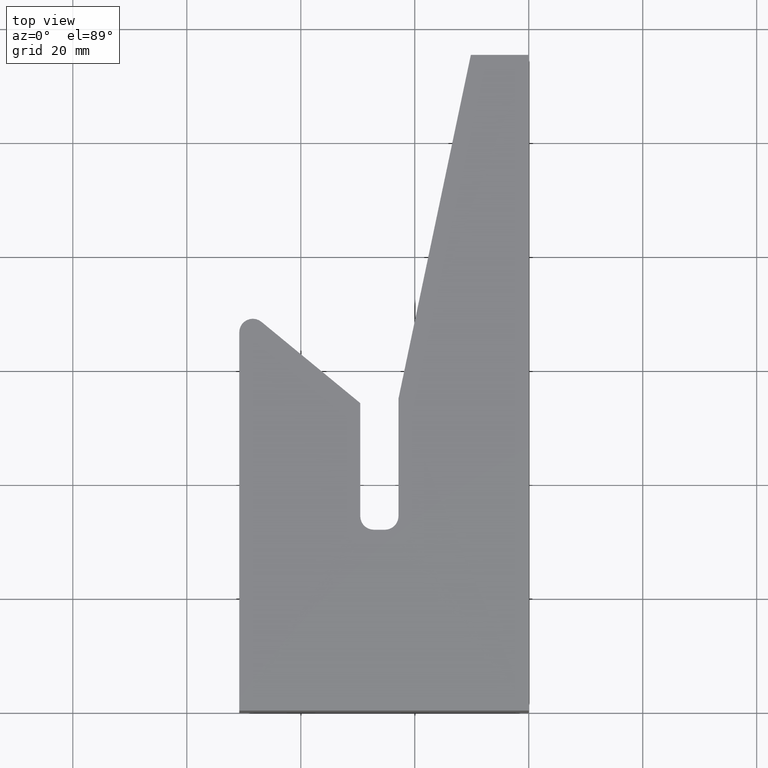
[diagram: clean part render]
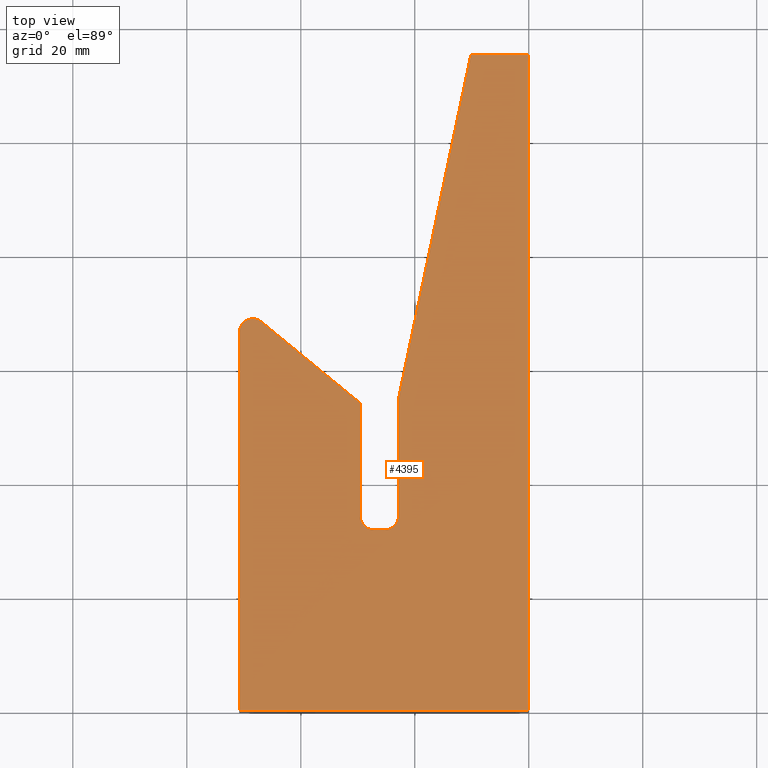
[diagram: same view with one face highlighted and labeled with its STEP entity id]
A machine part, top view. The second image highlights one B-rep face of the part: STEP entity #4395.
In plain terms, the highlighted planar face has unit normal (0, 0, 1).
Its self-contained STEP definition (entity closure, byte-faithful):
#570 = EDGE_CURVE ( 'NONE', #5808, #5862, #6613, .T. ) ;
#575 = EDGE_CURVE ( 'NONE', #5868, #5357, #6628, .T. ) ;
#580 = EDGE_CURVE ( 'NONE', #5795, #5824, #6637, .T. ) ;
#583 = EDGE_CURVE ( 'NONE', #5357, #5808, #6641, .T. ) ;
#853 = LINE ( 'NONE', #1478, #854 ) ;
#854 = VECTOR ( 'NONE', #1489, 39.37007874015748100 ) ;
#857 = CIRCLE ( 'NONE', #3768, 0.09375000000000005600 ) ;
#888 = VECTOR ( 'NONE', #1392, 39.37007874015748100 ) ;
#902 = LINE ( 'NONE', #1452, #888 ) ;
#1274 = CARTESIAN_POINT ( 'NONE',  ( -1.070249999999999700, 1.343749999999999800, 0.5000000000000000000 ) ) ;
#1392 = DIRECTION ( 'NONE',  ( 1.000000000000000000, 0.0000000000000000000, 0.0000000000000000000 ) ) ;
#1452 = CARTESIAN_POINT ( 'NONE',  ( -2.000000000000000000, 0.0000000000000000000, 0.5000000000000000000 ) ) ;
#1478 = CARTESIAN_POINT ( 'NONE',  ( 0.0000000000000000000, 0.0000000000000000000, 0.5000000000000000000 ) ) ;
#1489 = DIRECTION ( 'NONE',  ( 0.0000000000000000000, 1.000000000000000000, 0.0000000000000000000 ) ) ;
#1493 = DIRECTION ( 'NONE',  ( 1.000000000000000000, 0.0000000000000000000, 0.0000000000000000000 ) ) ;
#1512 = DIRECTION ( 'NONE',  ( -0.0000000000000000000, -0.0000000000000000000, -1.000000000000000000 ) ) ;
#2079 = DIRECTION ( 'NONE',  ( 1.000000000000000000, 0.0000000000000000000, 0.0000000000000000000 ) ) ;
#2080 = DIRECTION ( 'NONE',  ( -0.0000000000000000000, -0.0000000000000000000, -1.000000000000000000 ) ) ;
#2081 = CARTESIAN_POINT ( 'NONE',  ( -0.9937499999999998000, 1.343750000000000200, 0.5000000000000000000 ) ) ;
#2094 = DIRECTION ( 'NONE',  ( 0.0000000000000000000, 1.000000000000000000, 0.0000000000000000000 ) ) ;
#2095 = CARTESIAN_POINT ( 'NONE',  ( -1.163999999999999700, 1.249999999999999800, 0.5000000000000000000 ) ) ;
#2120 = DIRECTION ( 'NONE',  ( 1.507226479263041800E-016, -1.000000000000000000, 0.0000000000000000000 ) ) ;
#2123 = CARTESIAN_POINT ( 'NONE',  ( -0.8999999999999998000, 2.156250000000000000, 0.5000000000000000000 ) ) ;
#2130 = DIRECTION ( 'NONE',  ( -1.000000000000000000, -1.034790906691009000E-015, 0.0000000000000000000 ) ) ;
#2135 = CARTESIAN_POINT ( 'NONE',  ( -0.8999999999999996900, 1.250000000000000000, 0.5000000000000000000 ) ) ;
#2326 = AXIS2_PLACEMENT_3D ( 'NONE', #3094, #3679, #3678 ) ;
#2371 = AXIS2_PLACEMENT_3D ( 'NONE', #8177, #8198, #8199 ) ;
#3093 = PLANE ( 'NONE',  #2326 ) ;
#3094 = CARTESIAN_POINT ( 'NONE',  ( 0.0000000000000000000, 0.0000000000000000000, 0.5000000000000000000 ) ) ;
#3142 = LINE ( 'NONE', #8006, #3147 ) ;
#3145 = VECTOR ( 'NONE', #8082, 39.37007874015748100 ) ;
#3147 = VECTOR ( 'NONE', #8020, 39.37007874015748900 ) ;
#3155 = LINE ( 'NONE', #8081, #3145 ) ;
#3170 = LINE ( 'NONE', #8200, #3184 ) ;
#3184 = VECTOR ( 'NONE', #8201, 39.37007874015748100 ) ;
#3186 = LINE ( 'NONE', #8189, #3187 ) ;
#3187 = VECTOR ( 'NONE', #8190, 39.37007874015748100 ) ;
#3195 = CIRCLE ( 'NONE', #2371, 0.09375000000000005600 ) ;
#3678 = DIRECTION ( 'NONE',  ( 1.000000000000000000, 0.0000000000000000000, -0.0000000000000000000 ) ) ;
#3679 = DIRECTION ( 'NONE',  ( 0.0000000000000000000, 0.0000000000000000000, 1.000000000000000000 ) ) ;
#3761 = AXIS2_PLACEMENT_3D ( 'NONE', #2081, #2080, #2079 ) ;
#3768 = AXIS2_PLACEMENT_3D ( 'NONE', #1274, #1512, #1493 ) ;
#3881 = EDGE_CURVE ( 'NONE', #6029, #5842, #853, .T. ) ;
#3882 = EDGE_CURVE ( 'NONE', #5862, #5795, #857, .T. ) ;
#3909 = EDGE_CURVE ( 'NONE', #5371, #6029, #902, .T. ) ;
#4395 = ADVANCED_FACE ( 'NONE', ( #4530 ), #3093, .T. ) ;
#4530 = FACE_OUTER_BOUND ( 'NONE', #5159, .T. ) ;
#4716 = ORIENTED_EDGE ( 'NONE', *, *, #580, .T. ) ;
#4717 = ORIENTED_EDGE ( 'NONE', *, *, #3882, .T. ) ;
#4718 = ORIENTED_EDGE ( 'NONE', *, *, #570, .T. ) ;
#4719 = ORIENTED_EDGE ( 'NONE', *, *, #583, .T. ) ;
#4720 = ORIENTED_EDGE ( 'NONE', *, *, #575, .T. ) ;
#4721 = ORIENTED_EDGE ( 'NONE', *, *, #5232, .T. ) ;
#4722 = ORIENTED_EDGE ( 'NONE', *, *, #5227, .T. ) ;
#4723 = ORIENTED_EDGE ( 'NONE', *, *, #3881, .T. ) ;
#4724 = ORIENTED_EDGE ( 'NONE', *, *, #3909, .T. ) ;
#4725 = ORIENTED_EDGE ( 'NONE', *, *, #5059, .T. ) ;
#4726 = ORIENTED_EDGE ( 'NONE', *, *, #5231, .T. ) ;
#4727 = ORIENTED_EDGE ( 'NONE', *, *, #5049, .T. ) ;
#5049 = EDGE_CURVE ( 'NONE', #5824, #5748, #3142, .T. ) ;
#5059 = EDGE_CURVE ( 'NONE', #5241, #5371, #3155, .T. ) ;
#5159 = EDGE_LOOP ( 'NONE', ( #4727, #4726, #4725, #4724, #4723, #4722, #4721, #4720, #4719, #4718, #4717, #4716 ) ) ;
#5227 = EDGE_CURVE ( 'NONE', #5842, #5839, #3186, .T. ) ;
#5231 = EDGE_CURVE ( 'NONE', #5748, #5241, #3195, .T. ) ;
#5232 = EDGE_CURVE ( 'NONE', #5839, #5868, #3170, .T. ) ;
#5241 = VERTEX_POINT ( 'NONE', #8229 ) ;
#5357 = VERTEX_POINT ( 'NONE', #8240 ) ;
#5371 = VERTEX_POINT ( 'NONE', #8243 ) ;
#5748 = VERTEX_POINT ( 'NONE', #8309 ) ;
#5795 = VERTEX_POINT ( 'NONE', #8327 ) ;
#5808 = VERTEX_POINT ( 'NONE', #8335 ) ;
#5824 = VERTEX_POINT ( 'NONE', #8346 ) ;
#5839 = VERTEX_POINT ( 'NONE', #8358 ) ;
#5842 = VERTEX_POINT ( 'NONE', #8360 ) ;
#5862 = VERTEX_POINT ( 'NONE', #8374 ) ;
#5868 = VERTEX_POINT ( 'NONE', #8380 ) ;
#6029 = VERTEX_POINT ( 'NONE', #8391 ) ;
#6613 = LINE ( 'NONE', #2135, #6618 ) ;
#6618 = VECTOR ( 'NONE', #2130, 39.37007874015748100 ) ;
#6621 = VECTOR ( 'NONE', #2094, 39.37007874015748100 ) ;
#6628 = LINE ( 'NONE', #2123, #6629 ) ;
#6629 = VECTOR ( 'NONE', #2120, 39.37007874015748100 ) ;
#6637 = LINE ( 'NONE', #2095, #6621 ) ;
#6641 = CIRCLE ( 'NONE', #3761, 0.09375000000000005600 ) ;
#8006 = CARTESIAN_POINT ( 'NONE',  ( -1.163999999999999700, 2.125000000000000000, 0.5000000000000000000 ) ) ;
#8020 = DIRECTION ( 'NONE',  ( -0.7723700879025658900, 0.6351727696567151000, 0.0000000000000000000 ) ) ;
#8081 = CARTESIAN_POINT ( 'NONE',  ( -2.000000000000000400, 2.812500000000000000, 0.5000000000000000000 ) ) ;
#8082 = DIRECTION ( 'NONE',  ( 9.713237310806269200E-017, -1.000000000000000000, 0.0000000000000000000 ) ) ;
#8177 = CARTESIAN_POINT ( 'NONE',  ( -1.906250000000000200, 2.614023324690617500, 0.5000000000000000000 ) ) ;
#8189 = CARTESIAN_POINT ( 'NONE',  ( 0.0000000000000000000, 4.531250000000000000, 0.5000000000000000000 ) ) ;
#8190 = DIRECTION ( 'NONE',  ( -1.000000000000000000, 0.0000000000000000000, 0.0000000000000000000 ) ) ;
#8198 = DIRECTION ( 'NONE',  ( 0.0000000000000000000, 0.0000000000000000000, 1.000000000000000000 ) ) ;
#8199 = DIRECTION ( 'NONE',  ( 1.000000000000000000, 0.0000000000000000000, 0.0000000000000000000 ) ) ;
#8200 = CARTESIAN_POINT ( 'NONE',  ( -0.4000000000000000200, 4.531250000000000000, 0.5000000000000000000 ) ) ;
#8201 = DIRECTION ( 'NONE',  ( -0.2060104810498418200, -0.9785497849867490500, 0.0000000000000000000 ) ) ;
#8229 = CARTESIAN_POINT ( 'NONE',  ( -2.000000000000000400, 2.614023324690617500, 0.5000000000000000000 ) ) ;
#8240 = CARTESIAN_POINT ( 'NONE',  ( -0.8999999999999996900, 1.343750000000000200, 0.5000000000000000000 ) ) ;
#8243 = CARTESIAN_POINT ( 'NONE',  ( -2.000000000000000000, 0.0000000000000000000, 0.5000000000000000000 ) ) ;
#8309 = CARTESIAN_POINT ( 'NONE',  ( -1.846702552844683200, 2.686433020431482800, 0.5000000000000000000 ) ) ;
#8327 = CARTESIAN_POINT ( 'NONE',  ( -1.163999999999999700, 1.343749999999999800, 0.5000000000000000000 ) ) ;
#8335 = CARTESIAN_POINT ( 'NONE',  ( -0.9937499999999995800, 1.250000000000000000, 0.5000000000000000000 ) ) ;
#8346 = CARTESIAN_POINT ( 'NONE',  ( -1.163999999999999700, 2.125000000000000000, 0.5000000000000000000 ) ) ;
#8358 = CARTESIAN_POINT ( 'NONE',  ( -0.4000000000000000200, 4.531250000000000000, 0.5000000000000000000 ) ) ;
#8360 = CARTESIAN_POINT ( 'NONE',  ( 0.0000000000000000000, 4.531250000000000000, 0.5000000000000000000 ) ) ;
#8374 = CARTESIAN_POINT ( 'NONE',  ( -1.070249999999999500, 1.249999999999999800, 0.5000000000000000000 ) ) ;
#8380 = CARTESIAN_POINT ( 'NONE',  ( -0.8999999999999998000, 2.156250000000000000, 0.5000000000000000000 ) ) ;
#8391 = CARTESIAN_POINT ( 'NONE',  ( 0.0000000000000000000, 0.0000000000000000000, 0.5000000000000000000 ) ) ;